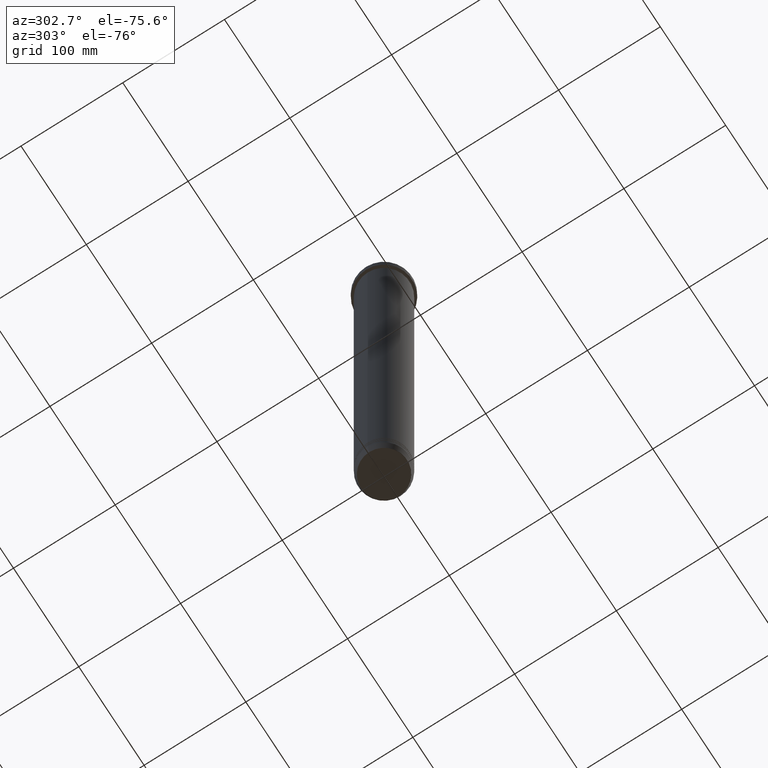
[diagram: clean part render]
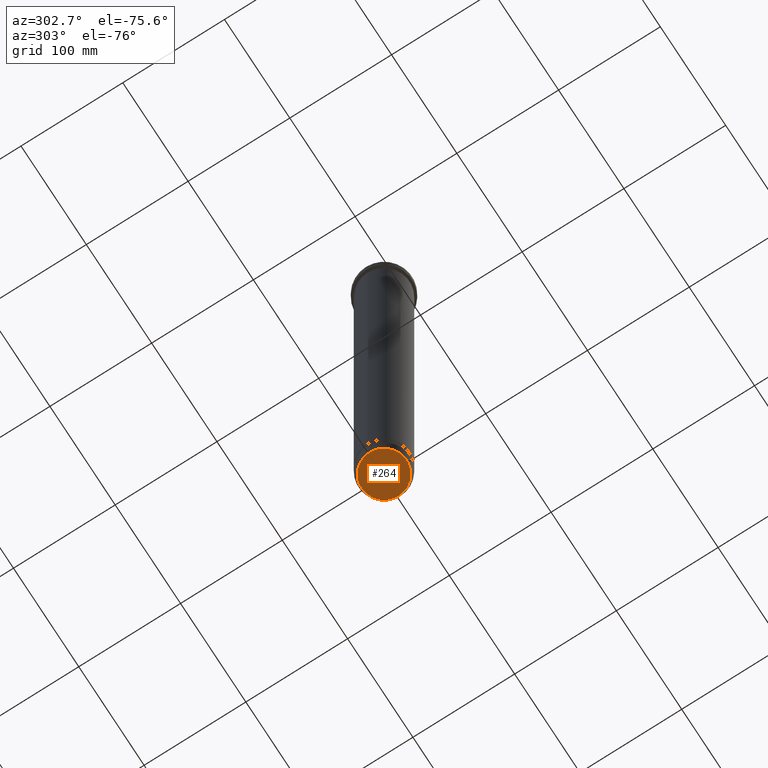
[diagram: same view with one face highlighted and labeled with its STEP entity id]
A machine part, auxiliary view. The second image highlights one B-rep face of the part: STEP entity #264.
In plain terms, the highlighted planar face has unit normal (0, -0, 1).
Its self-contained STEP definition (entity closure, byte-faithful):
#48 = ORIENTED_EDGE ( 'NONE', *, *, #805, .T. ) ;
#71 = DIRECTION ( 'NONE',  ( 1.000000000000000000, 0.000000000000000000, 0.000000000000000000 ) ) ;
#90 = CIRCLE ( 'NONE', #524, 22.20479377413039401 ) ;
#199 = CARTESIAN_POINT ( 'NONE',  ( 22.20479377413039401, 0.000000000000000000, -600.0000000000000000 ) ) ;
#213 = CARTESIAN_POINT ( 'NONE',  ( 0.000000000000000000, 6.735557395310440722E-14, -600.0000000000000000 ) ) ;
#243 = CARTESIAN_POINT ( 'NONE',  ( -22.20479377413039401, 2.748875911406053211E-15, -600.0000000000000000 ) ) ;
#264 = ADVANCED_FACE ( 'NONE', ( #942 ), #767, .F. ) ;
#267 = AXIS2_PLACEMENT_3D ( 'NONE', #955, #702, #71 ) ;
#359 = CARTESIAN_POINT ( 'NONE',  ( 0.000000000000000000, 0.000000000000000000, -600.0000000000000000 ) ) ;
#368 = EDGE_CURVE ( 'NONE', #783, #483, #719, .T. ) ;
#442 = DIRECTION ( 'NONE',  ( 1.000000000000000000, 0.000000000000000000, 0.000000000000000000 ) ) ;
#483 = VERTEX_POINT ( 'NONE', #243 ) ;
#524 = AXIS2_PLACEMENT_3D ( 'NONE', #359, #606, #937 ) ;
#599 = AXIS2_PLACEMENT_3D ( 'NONE', #213, #930, #442 ) ;
#606 = DIRECTION ( 'NONE',  ( 0.000000000000000000, 0.000000000000000000, -1.000000000000000000 ) ) ;
#702 = DIRECTION ( 'NONE',  ( 0.000000000000000000, 0.000000000000000000, -1.000000000000000000 ) ) ;
#719 = CIRCLE ( 'NONE', #267, 22.20479377413039401 ) ;
#767 = PLANE ( 'NONE',  #599 ) ;
#783 = VERTEX_POINT ( 'NONE', #199 ) ;
#805 = EDGE_CURVE ( 'NONE', #483, #783, #90, .T. ) ;
#835 = ORIENTED_EDGE ( 'NONE', *, *, #368, .T. ) ;
#930 = DIRECTION ( 'NONE',  ( 0.000000000000000000, -0.000000000000000000, 1.000000000000000000 ) ) ;
#937 = DIRECTION ( 'NONE',  ( 1.000000000000000000, 0.000000000000000000, 0.000000000000000000 ) ) ;
#942 = FACE_OUTER_BOUND ( 'NONE', #1029, .T. ) ;
#955 = CARTESIAN_POINT ( 'NONE',  ( 0.000000000000000000, 0.000000000000000000, -600.0000000000000000 ) ) ;
#1029 = EDGE_LOOP ( 'NONE', ( #835, #48 ) ) ;